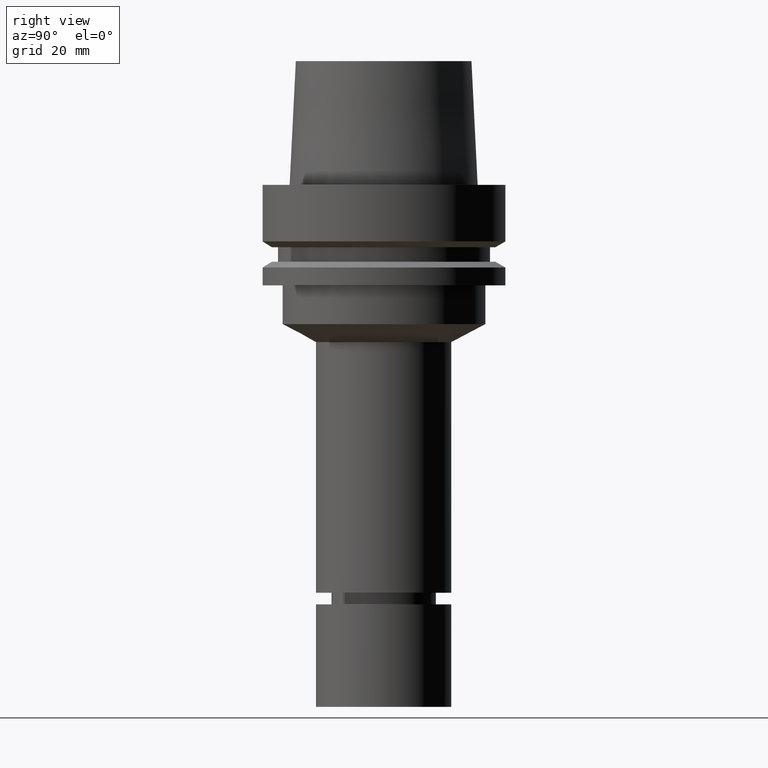
[diagram: clean part render]
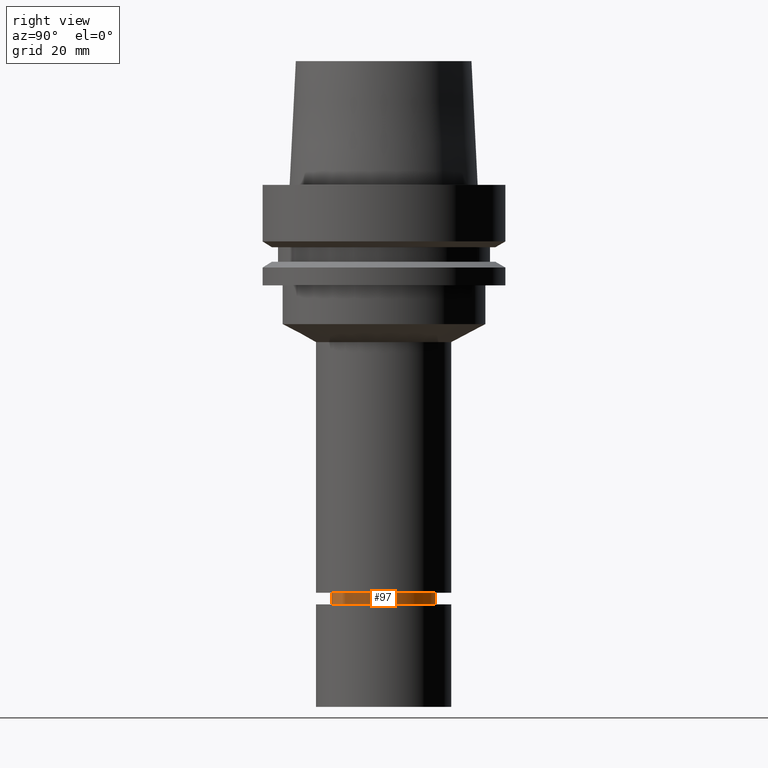
[diagram: same view with one face highlighted and labeled with its STEP entity id]
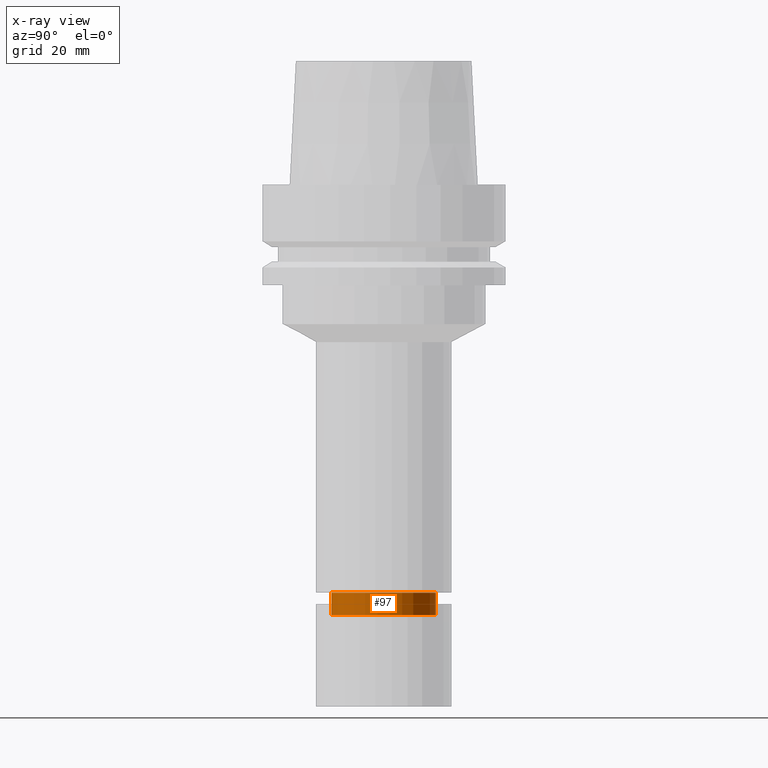
[diagram: x-ray of the same camera — body ghosted, the highlighted face saturated]
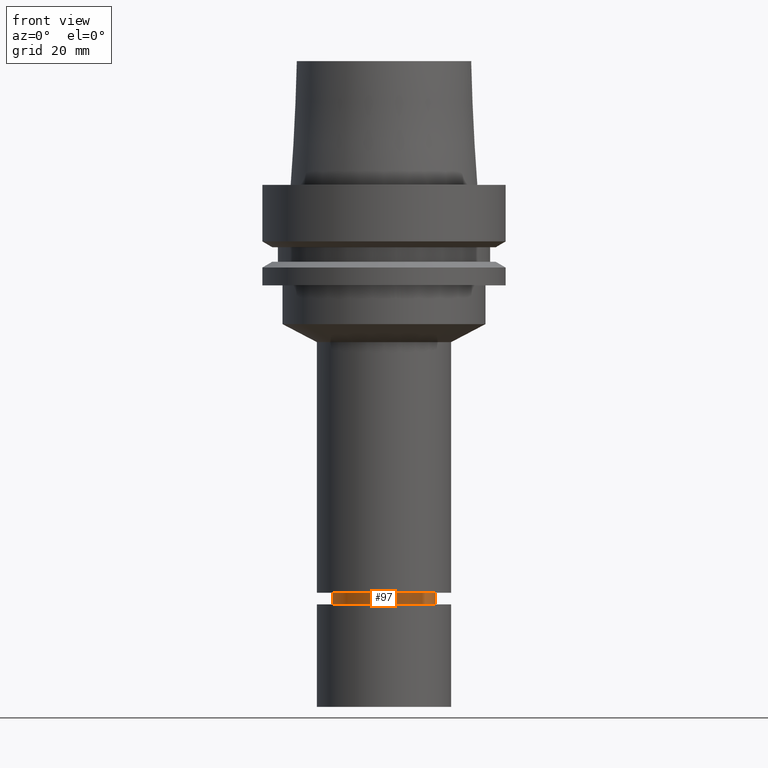
[diagram: same view with one face highlighted and labeled with its STEP entity id]
A machine part, right view. The second image highlights one B-rep face of the part: STEP entity #97.
The next image is the same camera in x-ray: the body ghosted, the highlighted face saturated — about 0% of this face is hidden behind the body in this view.
A second angle (front view) of the same face is appended — the face is thin or edge-on in the first view.
In plain terms, the highlighted cylindrical surface (bore or boss wall) has radius 13.5 mm, axis along (-0, -0, 1).
Its self-contained STEP definition (entity closure, byte-faithful):
#97=ADVANCED_FACE('Unnamed[1]',(#242,#243),#244,.T.);
#113=EDGE_CURVE('Unnamed[1]',#267,#267,#268,.T.);
#166=EDGE_CURVE('Unnamed[1]',#351,#351,#352,.T.);
#242=FACE_BOUND('',#439,.T.);
#243=FACE_BOUND('',#440,.T.);
#244=CYLINDRICAL_SURFACE('',#441,13.4999999999956);
#267=VERTEX_POINT('',#470);
#268=CIRCLE('',#471,13.4999999999908);
#351=VERTEX_POINT('',#575);
#352=CIRCLE('',#576,13.5000000000005);
#439=EDGE_LOOP('',(#659));
#440=EDGE_LOOP('',(#660));
#441=AXIS2_PLACEMENT_3D('',#661,#662,#663);
#470=CARTESIAN_POINT('',(6.46001186550228E-015,13.4999999999908,-105.5));
#471=AXIS2_PLACEMENT_3D('',#689,#690,#691);
#575=CARTESIAN_POINT('',(6.81652644100301E-015,13.5000000000005,-111.322324865405));
#576=AXIS2_PLACEMENT_3D('',#784,#785,#786);
#659=ORIENTED_EDGE('',*,*,#113,.F.);
#660=ORIENTED_EDGE('',*,*,#166,.T.);
#661=CARTESIAN_POINT('',(6.63826915325264E-015,1.32765383065053E-014,-108.411162432703));
#662=DIRECTION('',(-6.12323399573677E-017,-1.22464679914735E-016,1.0));
#663=DIRECTION('',(-1.23259516440783E-032,1.0,1.22464679914735E-016));
#689=CARTESIAN_POINT('',(6.46001186550228E-015,1.29200237310045E-014,-105.5));
#690=DIRECTION('',(-6.12323399573677E-017,-1.22464679914735E-016,1.0));
#691=DIRECTION('',(-1.23259516440783E-032,1.0,1.22464679914735E-016));
#784=CARTESIAN_POINT('',(6.81652644100301E-015,1.3633052882006E-014,-111.322324865405));
#785=DIRECTION('',(-6.12323399573677E-017,-1.22464679914735E-016,1.0));
#786=DIRECTION('',(-1.23259516440783E-032,1.0,1.22464679914735E-016));